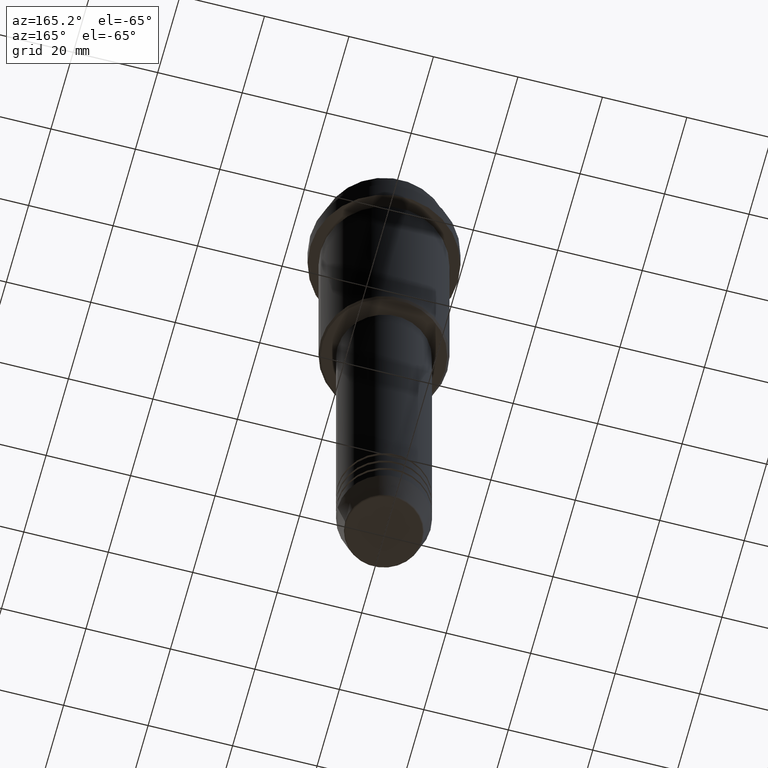
[diagram: clean part render]
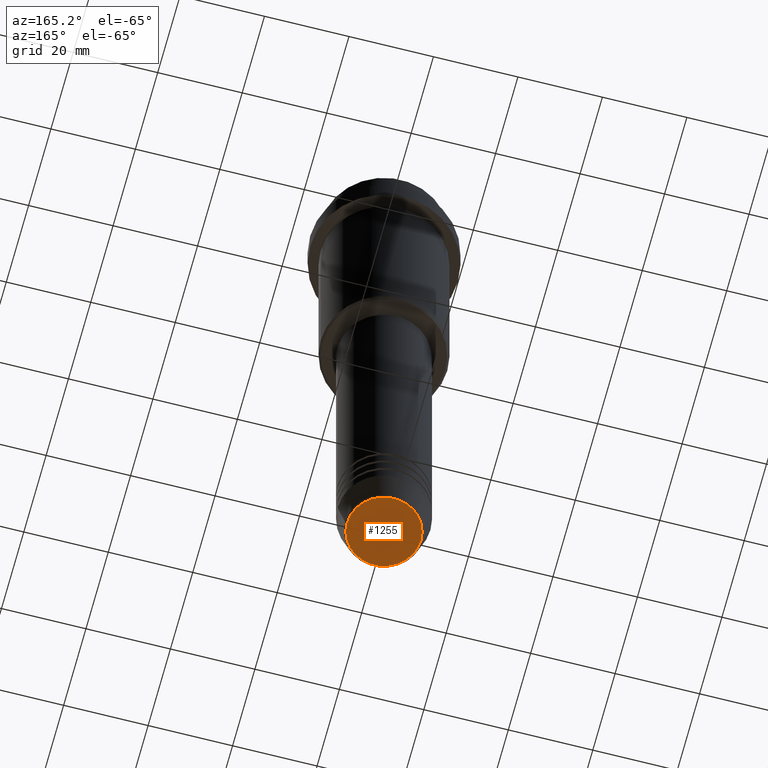
[diagram: same view with one face highlighted and labeled with its STEP entity id]
A machine part, auxiliary view. The second image highlights one B-rep face of the part: STEP entity #1255.
In plain terms, the highlighted planar face has unit normal (0, -0, 1).
Its self-contained STEP definition (entity closure, byte-faithful):
#84 = CIRCLE ( 'NONE', #110, 8.740692158992656502 ) ;
#110 = AXIS2_PLACEMENT_3D ( 'NONE', #902, #367, #1372 ) ;
#149 = VERTEX_POINT ( 'NONE', #379 ) ;
#154 = AXIS2_PLACEMENT_3D ( 'NONE', #870, #1233, #253 ) ;
#253 = DIRECTION ( 'NONE',  ( 1.000000000000000000, 0.000000000000000000, 0.000000000000000000 ) ) ;
#367 = DIRECTION ( 'NONE',  ( 0.000000000000000000, 0.000000000000000000, -1.000000000000000000 ) ) ;
#379 = CARTESIAN_POINT ( 'NONE',  ( 8.740692158992656502, 0.000000000000000000, -160.0000000000000000 ) ) ;
#390 = DIRECTION ( 'NONE',  ( 1.000000000000000000, 0.000000000000000000, 0.000000000000000000 ) ) ;
#431 = AXIS2_PLACEMENT_3D ( 'NONE', #798, #1242, #390 ) ;
#517 = ORIENTED_EDGE ( 'NONE', *, *, #845, .T. ) ;
#798 = CARTESIAN_POINT ( 'NONE',  ( 0.000000000000000000, 0.000000000000000000, -160.0000000000000000 ) ) ;
#845 = EDGE_CURVE ( 'NONE', #1321, #149, #1383, .T. ) ;
#870 = CARTESIAN_POINT ( 'NONE',  ( 0.000000000000000000, 0.000000000000000000, -160.0000000000000000 ) ) ;
#902 = CARTESIAN_POINT ( 'NONE',  ( 0.000000000000000000, 0.000000000000000000, -160.0000000000000000 ) ) ;
#1138 = FACE_OUTER_BOUND ( 'NONE', #1195, .T. ) ;
#1170 = EDGE_CURVE ( 'NONE', #149, #1321, #84, .T. ) ;
#1195 = EDGE_LOOP ( 'NONE', ( #1334, #517 ) ) ;
#1233 = DIRECTION ( 'NONE',  ( 0.000000000000000000, 0.000000000000000000, -1.000000000000000000 ) ) ;
#1242 = DIRECTION ( 'NONE',  ( 0.000000000000000000, -0.000000000000000000, 1.000000000000000000 ) ) ;
#1255 = ADVANCED_FACE ( 'NONE', ( #1138 ), #1353, .F. ) ;
#1272 = CARTESIAN_POINT ( 'NONE',  ( -8.740692158992656502, 1.099999016768739653E-15, -160.0000000000000000 ) ) ;
#1321 = VERTEX_POINT ( 'NONE', #1272 ) ;
#1334 = ORIENTED_EDGE ( 'NONE', *, *, #1170, .T. ) ;
#1353 = PLANE ( 'NONE',  #431 ) ;
#1372 = DIRECTION ( 'NONE',  ( 1.000000000000000000, 0.000000000000000000, 0.000000000000000000 ) ) ;
#1383 = CIRCLE ( 'NONE', #154, 8.740692158992656502 ) ;